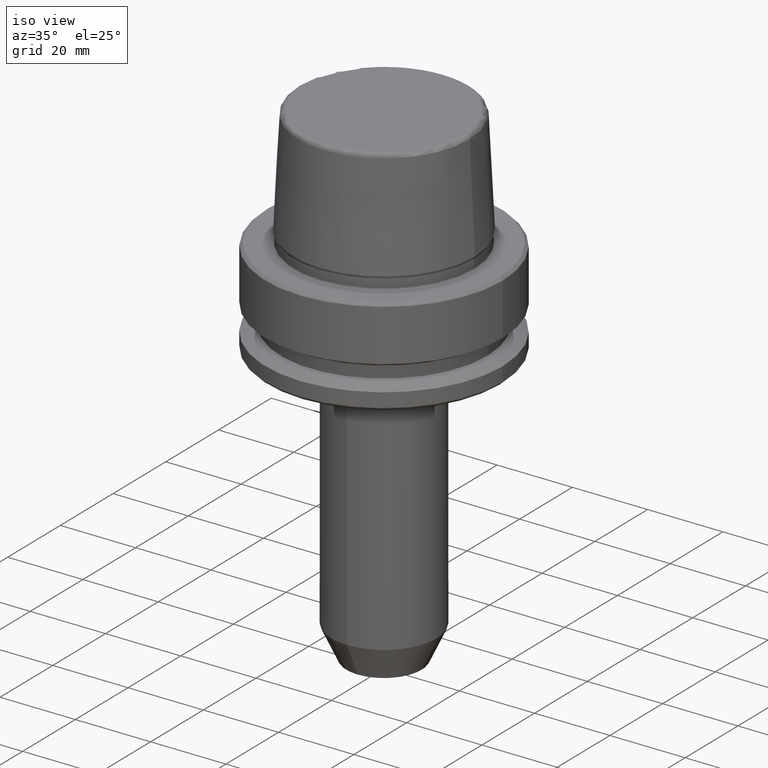
[diagram: clean part render]
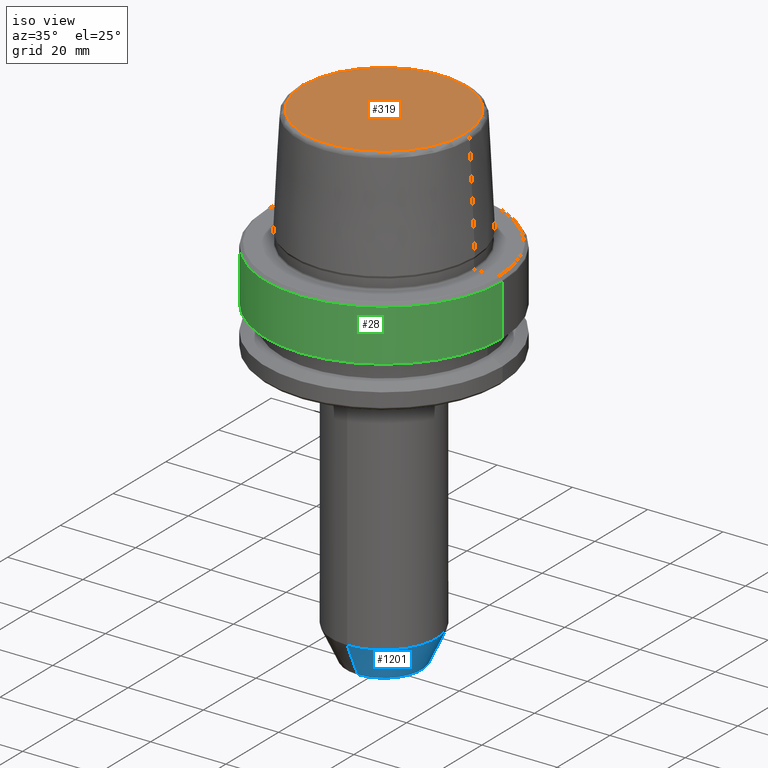
[diagram: same view with three faces highlighted in distinct colors, each labeled with its STEP entity id]
A machine part, iso view with three faces highlighted in distinct colors.
Their STEP definitions:

[orange] entity #319 — the highlighted planar face has unit normal (0, 0, -1).
#122 = DIRECTION ( 'NONE',  ( -0.0000000000000000000, -0.0000000000000000000, 1.000000000000000000 ) ) ;
#129 = CARTESIAN_POINT ( 'NONE',  ( 21.58108272732117100, 0.0000000000000000000, 31.89999999999999900 ) ) ;
#154 = EDGE_LOOP ( 'NONE', ( #851, #793 ) ) ;
#193 = CARTESIAN_POINT ( 'NONE',  ( -21.58108272732117100, 2.716307157494421400E-015, 31.89999999999999900 ) ) ;
#197 = DIRECTION ( 'NONE',  ( -1.000000000000000000, 0.0000000000000000000, -0.0000000000000000000 ) ) ;
#237 = VERTEX_POINT ( 'NONE', #193 ) ;
#319 = ADVANCED_FACE ( 'NONE', ( #557 ), #1252, .F. ) ;
#459 = AXIS2_PLACEMENT_3D ( 'NONE', #501, #1175, #598 ) ;
#501 = CARTESIAN_POINT ( 'NONE',  ( 0.0000000000000000000, 0.0000000000000000000, 31.89999999999999900 ) ) ;
#557 = FACE_OUTER_BOUND ( 'NONE', #154, .T. ) ;
#598 = DIRECTION ( 'NONE',  ( 1.000000000000000000, 0.0000000000000000000, 0.0000000000000000000 ) ) ;
#616 = EDGE_CURVE ( 'NONE', #859, #237, #1046, .T. ) ;
#718 = DIRECTION ( 'NONE',  ( 0.0000000000000000000, 0.0000000000000000000, -1.000000000000000000 ) ) ;
#738 = CARTESIAN_POINT ( 'NONE',  ( 0.0000000000000000000, 0.0000000000000000000, 31.89999999999999900 ) ) ;
#793 = ORIENTED_EDGE ( 'NONE', *, *, #803, .T. ) ;
#803 = EDGE_CURVE ( 'NONE', #237, #859, #871, .T. ) ;
#834 = DIRECTION ( 'NONE',  ( 1.000000000000000000, 0.0000000000000000000, 0.0000000000000000000 ) ) ;
#851 = ORIENTED_EDGE ( 'NONE', *, *, #616, .T. ) ;
#859 = VERTEX_POINT ( 'NONE', #129 ) ;
#866 = AXIS2_PLACEMENT_3D ( 'NONE', #1150, #718, #197 ) ;
#871 = CIRCLE ( 'NONE', #1247, 21.58108272732117100 ) ;
#1046 = CIRCLE ( 'NONE', #459, 21.58108272732117100 ) ;
#1150 = CARTESIAN_POINT ( 'NONE',  ( 0.0000000000000000000, 0.0000000000000000000, 31.89999999999999900 ) ) ;
#1175 = DIRECTION ( 'NONE',  ( -0.0000000000000000000, -0.0000000000000000000, 1.000000000000000000 ) ) ;
#1247 = AXIS2_PLACEMENT_3D ( 'NONE', #738, #122, #834 ) ;
#1252 = PLANE ( 'NONE',  #866 ) ;

[blue] entity #1201 — the highlighted conical surface has half-angle 25 deg.
#13 = ORIENTED_EDGE ( 'NONE', *, *, #35, .T. ) ;
#26 = CARTESIAN_POINT ( 'NONE',  ( 0.0000000000000000000, -13.99999999999999500, -91.42197231796173200 ) ) ;
#27 = VERTEX_POINT ( 'NONE', #26 ) ;
#35 = EDGE_CURVE ( 'NONE', #300, #27, #1240, .T. ) ;
#76 = CARTESIAN_POINT ( 'NONE',  ( 1.224646799147352900E-015, 10.00000000000000000, -100.0000000000000000 ) ) ;
#95 = DIRECTION ( 'NONE',  ( 0.0000000000000000000, -0.4226182617406978900, 0.9063077870366507100 ) ) ;
#173 = DIRECTION ( 'NONE',  ( 0.0000000000000000000, -1.000000000000000000, 0.0000000000000000000 ) ) ;
#295 = DIRECTION ( 'NONE',  ( 5.175581015019639700E-017, 0.4226182617406978300, 0.9063077870366507100 ) ) ;
#300 = VERTEX_POINT ( 'NONE', #747 ) ;
#303 = VECTOR ( 'NONE', #95, 1000.000000000000000 ) ;
#312 = CARTESIAN_POINT ( 'NONE',  ( 0.0000000000000000000, -9.999999999999992900, -100.0000000000000000 ) ) ;
#325 = ORIENTED_EDGE ( 'NONE', *, *, #329, .F. ) ;
#329 = EDGE_CURVE ( 'NONE', #1220, #1271, #581, .T. ) ;
#407 = CARTESIAN_POINT ( 'NONE',  ( 0.0000000000000000000, -9.999999999999992900, -100.0000000000000000 ) ) ;
#476 = CONICAL_SURFACE ( 'NONE', #878, 9.999999999999996400, 0.4363323129985806100 ) ;
#510 = VECTOR ( 'NONE', #295, 999.9999999999998900 ) ;
#561 = EDGE_CURVE ( 'NONE', #1220, #300, #839, .T. ) ;
#581 = CIRCLE ( 'NONE', #925, 9.999999999999996400 ) ;
#652 = DIRECTION ( 'NONE',  ( -0.0000000000000000000, 5.792248374345589000E-017, -1.000000000000000000 ) ) ;
#662 = EDGE_CURVE ( 'NONE', #1271, #27, #1237, .T. ) ;
#730 = AXIS2_PLACEMENT_3D ( 'NONE', #858, #652, #757 ) ;
#747 = CARTESIAN_POINT ( 'NONE',  ( 1.714505518806294200E-015, 14.00000000000000000, -91.42197231796173200 ) ) ;
#757 = DIRECTION ( 'NONE',  ( 0.0000000000000000000, 1.000000000000000000, 0.0000000000000000000 ) ) ;
#760 = EDGE_LOOP ( 'NONE', ( #325, #1196, #13, #1072 ) ) ;
#788 = CARTESIAN_POINT ( 'NONE',  ( 0.0000000000000000000, 4.286263797015735700E-015, -100.0000000000000000 ) ) ;
#797 = CARTESIAN_POINT ( 'NONE',  ( 1.469576158976823600E-015, 10.00000000000000000, -100.0000000000000000 ) ) ;
#839 = LINE ( 'NONE', #76, #510 ) ;
#858 = CARTESIAN_POINT ( 'NONE',  ( 0.0000000000000000000, 3.789403128051959900E-015, -91.42197231796173200 ) ) ;
#878 = AXIS2_PLACEMENT_3D ( 'NONE', #788, #985, #173 ) ;
#925 = AXIS2_PLACEMENT_3D ( 'NONE', #1233, #986, #1073 ) ;
#985 = DIRECTION ( 'NONE',  ( 0.0000000000000000000, -5.792248374345589000E-017, 1.000000000000000000 ) ) ;
#986 = DIRECTION ( 'NONE',  ( -0.0000000000000000000, 5.792248374345589000E-017, -1.000000000000000000 ) ) ;
#1072 = ORIENTED_EDGE ( 'NONE', *, *, #662, .F. ) ;
#1073 = DIRECTION ( 'NONE',  ( 0.0000000000000000000, 1.000000000000000000, 0.0000000000000000000 ) ) ;
#1178 = FACE_OUTER_BOUND ( 'NONE', #760, .T. ) ;
#1196 = ORIENTED_EDGE ( 'NONE', *, *, #561, .T. ) ;
#1201 = ADVANCED_FACE ( 'NONE', ( #1178 ), #476, .T. ) ;
#1220 = VERTEX_POINT ( 'NONE', #797 ) ;
#1233 = CARTESIAN_POINT ( 'NONE',  ( 0.0000000000000000000, 4.286263797015735700E-015, -100.0000000000000000 ) ) ;
#1237 = LINE ( 'NONE', #312, #303 ) ;
#1240 = CIRCLE ( 'NONE', #730, 13.99999999999999600 ) ;
#1271 = VERTEX_POINT ( 'NONE', #407 ) ;

[green] entity #28 — the highlighted cylindrical surface (partial cylindrical patch) has radius 31.5 mm, axis along (-0, -0, 1).
#28 = ADVANCED_FACE ( 'NONE', ( #739 ), #1011, .T. ) ;
#85 = CIRCLE ( 'NONE', #1080, 31.50000000000000000 ) ;
#126 = VECTOR ( 'NONE', #210, 1000.000000000000000 ) ;
#210 = DIRECTION ( 'NONE',  ( -0.0000000000000000000, -0.0000000000000000000, 1.000000000000000000 ) ) ;
#238 = VECTOR ( 'NONE', #1114, 1000.000000000000000 ) ;
#240 = CARTESIAN_POINT ( 'NONE',  ( -31.50000000000000000, 3.857637417314162700E-015, -0.9656854249492363700 ) ) ;
#282 = EDGE_LOOP ( 'NONE', ( #441, #489, #1209, #1090 ) ) ;
#351 = CARTESIAN_POINT ( 'NONE',  ( -31.50000000000000000, 3.857637417314162700E-015, 78.96908074195309300 ) ) ;
#420 = EDGE_CURVE ( 'NONE', #1154, #917, #1184, .T. ) ;
#441 = ORIENTED_EDGE ( 'NONE', *, *, #420, .F. ) ;
#449 = CARTESIAN_POINT ( 'NONE',  ( 0.0000000000000000000, 0.0000000000000000000, -14.62250092524070100 ) ) ;
#452 = EDGE_CURVE ( 'NONE', #1154, #816, #85, .T. ) ;
#453 = DIRECTION ( 'NONE',  ( -0.0000000000000000000, -0.0000000000000000000, 1.000000000000000000 ) ) ;
#489 = ORIENTED_EDGE ( 'NONE', *, *, #452, .T. ) ;
#586 = DIRECTION ( 'NONE',  ( -0.0000000000000000000, -0.0000000000000000000, 1.000000000000000000 ) ) ;
#621 = CARTESIAN_POINT ( 'NONE',  ( 31.50000000000000000, 0.0000000000000000000, -14.62250092524070100 ) ) ;
#663 = AXIS2_PLACEMENT_3D ( 'NONE', #801, #586, #847 ) ;
#739 = FACE_OUTER_BOUND ( 'NONE', #282, .T. ) ;
#778 = LINE ( 'NONE', #1203, #238 ) ;
#801 = CARTESIAN_POINT ( 'NONE',  ( 0.0000000000000000000, 0.0000000000000000000, 78.96908074195309300 ) ) ;
#816 = VERTEX_POINT ( 'NONE', #621 ) ;
#826 = DIRECTION ( 'NONE',  ( 1.000000000000000000, 0.0000000000000000000, 0.0000000000000000000 ) ) ;
#829 = EDGE_CURVE ( 'NONE', #816, #1056, #778, .T. ) ;
#847 = DIRECTION ( 'NONE',  ( 1.000000000000000000, 0.0000000000000000000, 0.0000000000000000000 ) ) ;
#867 = CIRCLE ( 'NONE', #967, 31.50000000000000000 ) ;
#892 = EDGE_CURVE ( 'NONE', #917, #1056, #867, .T. ) ;
#917 = VERTEX_POINT ( 'NONE', #240 ) ;
#945 = DIRECTION ( 'NONE',  ( -0.0000000000000000000, -0.0000000000000000000, 1.000000000000000000 ) ) ;
#967 = AXIS2_PLACEMENT_3D ( 'NONE', #1041, #453, #1127 ) ;
#1011 = CYLINDRICAL_SURFACE ( 'NONE', #663, 31.50000000000000000 ) ;
#1041 = CARTESIAN_POINT ( 'NONE',  ( 0.0000000000000000000, 0.0000000000000000000, -0.9656854249492363700 ) ) ;
#1056 = VERTEX_POINT ( 'NONE', #1147 ) ;
#1080 = AXIS2_PLACEMENT_3D ( 'NONE', #449, #945, #826 ) ;
#1090 = ORIENTED_EDGE ( 'NONE', *, *, #892, .F. ) ;
#1114 = DIRECTION ( 'NONE',  ( -0.0000000000000000000, -0.0000000000000000000, 1.000000000000000000 ) ) ;
#1127 = DIRECTION ( 'NONE',  ( 1.000000000000000000, 0.0000000000000000000, 0.0000000000000000000 ) ) ;
#1147 = CARTESIAN_POINT ( 'NONE',  ( 31.50000000000000000, 0.0000000000000000000, -0.9656854249492363700 ) ) ;
#1154 = VERTEX_POINT ( 'NONE', #1242 ) ;
#1184 = LINE ( 'NONE', #351, #126 ) ;
#1203 = CARTESIAN_POINT ( 'NONE',  ( 31.50000000000000000, 0.0000000000000000000, 78.96908074195309300 ) ) ;
#1209 = ORIENTED_EDGE ( 'NONE', *, *, #829, .T. ) ;
#1242 = CARTESIAN_POINT ( 'NONE',  ( -31.50000000000000000, 3.857637417314162700E-015, -14.62250092524070100 ) ) ;